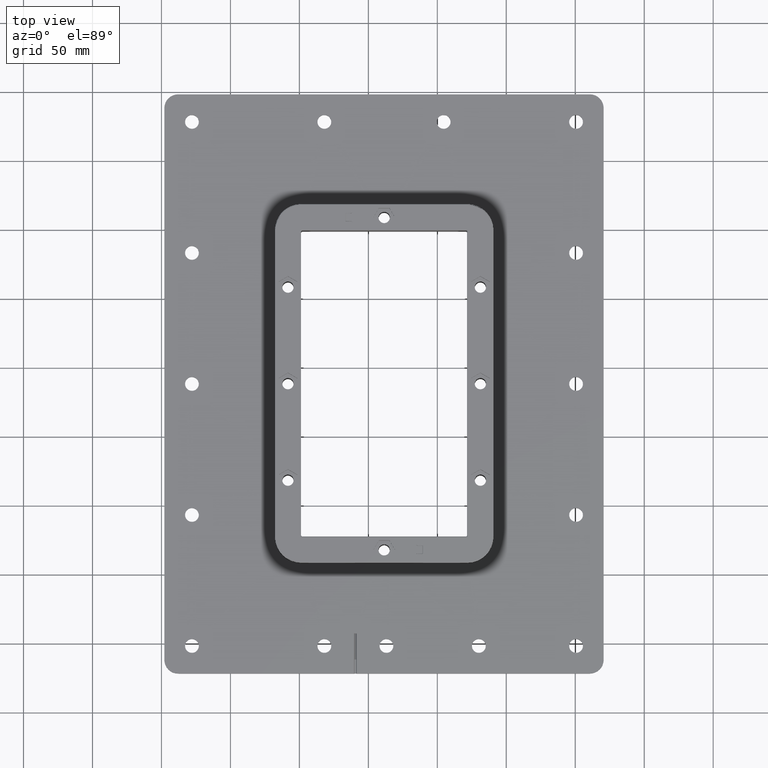
[diagram: clean part render]
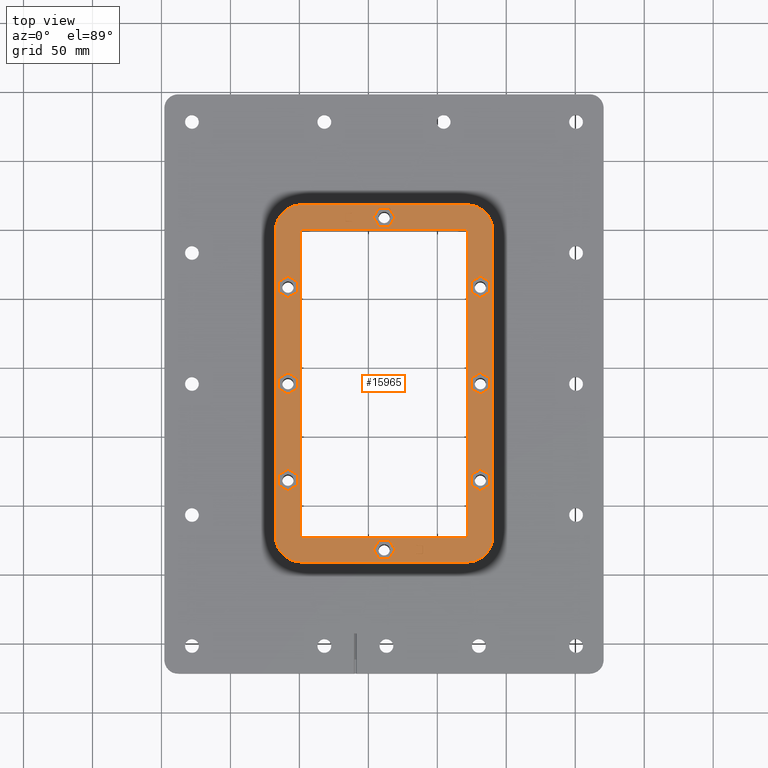
[diagram: same view with one face highlighted and labeled with its STEP entity id]
A machine part, top view. The second image highlights one B-rep face of the part: STEP entity #15965.
In plain terms, the highlighted planar face has unit normal (0, 0, -1).
Its self-contained STEP definition (entity closure, byte-faithful):
#2646=CARTESIAN_POINT('',(328.810808067202570,39.436636017474157,17.895023394076674));
#2647=VERTEX_POINT('',#2646);
#2655=CARTESIAN_POINT('',(208.310808067202570,39.436636017474299,17.895023394076706));
#2656=VERTEX_POINT('',#2655);
#2657=CARTESIAN_POINT('',(328.810808067202570,39.436636017474157,17.895023394076674));
#2658=DIRECTION('',(-1.0,0.0,0.0));
#2659=VECTOR('',#2658,120.500000000000000);
#2660=LINE('',#2657,#2659);
#2661=EDGE_CURVE('',#2647,#2656,#2660,.T.);
#2688=CARTESIAN_POINT('',(189.810808067202570,57.936636017474292,17.895023394076706));
#2689=VERTEX_POINT('',#2688);
#2697=CARTESIAN_POINT('',(189.810808067202570,279.936636017474310,17.895023394076706));
#2698=VERTEX_POINT('',#2697);
#2699=CARTESIAN_POINT('',(189.810808067202570,57.936636017474292,17.895023394076706));
#2700=DIRECTION('',(0.0,1.0,0.0));
#2701=VECTOR('',#2700,222.000000000000030);
#2702=LINE('',#2699,#2701);
#2703=EDGE_CURVE('',#2689,#2698,#2702,.T.);
#2730=CARTESIAN_POINT('',(208.310808067202570,298.436636017474310,17.895023394076706));
#2731=VERTEX_POINT('',#2730);
#2739=CARTESIAN_POINT('',(328.810808067202570,298.436636017474140,17.895023394076674));
#2740=VERTEX_POINT('',#2739);
#2741=CARTESIAN_POINT('',(208.310808067202570,298.436636017474310,17.895023394076706));
#2742=DIRECTION('',(1.0,0.0,0.0));
#2743=VECTOR('',#2742,120.500000000000000);
#2744=LINE('',#2741,#2743);
#2745=EDGE_CURVE('',#2731,#2740,#2744,.T.);
#2772=CARTESIAN_POINT('',(207.810808067202690,57.436636017474299,17.895023394076706));
#2773=VERTEX_POINT('',#2772);
#2789=CARTESIAN_POINT('',(329.310808067202520,57.436636017474157,17.895023394076674));
#2790=VERTEX_POINT('',#2789);
#2791=CARTESIAN_POINT('',(207.810808067202690,57.436636017474299,17.895023394076706));
#2792=DIRECTION('',(1.0,0.0,0.0));
#2793=VECTOR('',#2792,121.499999999999830);
#2794=LINE('',#2791,#2793);
#2795=EDGE_CURVE('',#2773,#2790,#2794,.T.);
#2830=CARTESIAN_POINT('',(329.310808067202520,280.436636017474200,17.895023394076674));
#2831=VERTEX_POINT('',#2830);
#2847=CARTESIAN_POINT('',(207.810808067202690,280.436636017474310,17.895023394076706));
#2848=VERTEX_POINT('',#2847);
#2849=CARTESIAN_POINT('',(329.310808067202520,280.436636017474200,17.895023394076674));
#2850=DIRECTION('',(-1.0,0.0,0.0));
#2851=VECTOR('',#2850,121.499999999999830);
#2852=LINE('',#2849,#2851);
#2853=EDGE_CURVE('',#2831,#2848,#2852,.T.);
#2903=CARTESIAN_POINT('',(207.810808067202690,280.436636017474310,17.895023394076706));
#2904=DIRECTION('',(0.0,-1.0,0.0));
#2905=VECTOR('',#2904,223.0);
#2906=LINE('',#2903,#2905);
#2907=EDGE_CURVE('',#2848,#2773,#2906,.T.);
#3858=CARTESIAN_POINT('',(296.296412139486050,51.190189408067596,17.895023394076706));
#3859=VERTEX_POINT('',#3858);
#3875=CARTESIAN_POINT('',(295.850357773918970,51.336636017474305,17.895023394076706));
#3876=VERTEX_POINT('',#3875);
#3883=CARTESIAN_POINT('',(295.850357773918970,50.836636017474312,17.895023394076706));
#3884=DIRECTION('',(0.0,0.0,-1.0));
#3885=DIRECTION('',(1.0,0.0,0.0));
#3886=AXIS2_PLACEMENT_3D('',#3883,#3884,#3885);
#3887=ELLIPSE('',#3886,0.630816133340643,0.500000000000000);
#3888=EDGE_CURVE('',#3876,#3859,#3887,.T.);
#3898=CARTESIAN_POINT('',(296.296412139486050,45.683082626881010,17.895023394076706));
#3899=VERTEX_POINT('',#3898);
#3908=CARTESIAN_POINT('',(295.850357773918970,45.536636017474301,17.895023394076706));
#3909=VERTEX_POINT('',#3908);
#3910=CARTESIAN_POINT('',(295.850357773918970,46.036636017474294,17.895023394076706));
#3911=DIRECTION('',(0.0,0.0,-1.0));
#3912=DIRECTION('',(1.0,0.0,0.0));
#3913=AXIS2_PLACEMENT_3D('',#3910,#3911,#3912);
#3914=ELLIPSE('',#3913,0.630816133340643,0.500000000000000);
#3915=EDGE_CURVE('',#3899,#3909,#3914,.T.);
#4110=CARTESIAN_POINT('',(240.699040768251170,286.583082626881040,17.895023394076706));
#4111=VERTEX_POINT('',#4110);
#4127=CARTESIAN_POINT('',(240.514279000477560,286.936636017474310,17.895023394076706));
#4128=VERTEX_POINT('',#4127);
#4135=CARTESIAN_POINT('',(241.145095133818190,286.936636017474310,17.895023394076706));
#4136=DIRECTION('',(0.0,0.0,-1.0));
#4137=DIRECTION('',(-1.0,0.0,0.0));
#4138=AXIS2_PLACEMENT_3D('',#4135,#4136,#4137);
#4139=ELLIPSE('',#4138,0.630816133340643,0.500000000000000);
#4140=EDGE_CURVE('',#4111,#4128,#4139,.T.);
#4150=CARTESIAN_POINT('',(240.699040768251140,292.290189408067590,17.895023394076706));
#4151=VERTEX_POINT('',#4150);
#4160=CARTESIAN_POINT('',(240.514279000477560,291.936636017474310,17.895023394076706));
#4161=VERTEX_POINT('',#4160);
#4162=CARTESIAN_POINT('',(241.145095133818190,291.936636017474310,17.895023394076706));
#4163=DIRECTION('',(0.0,0.0,-1.0));
#4164=DIRECTION('',(-1.0,0.0,0.0));
#4165=AXIS2_PLACEMENT_3D('',#4162,#4163,#4164);
#4166=ELLIPSE('',#4165,0.630816133340643,0.500000000000000);
#4167=EDGE_CURVE('',#4161,#4151,#4166,.T.);
#4192=CARTESIAN_POINT('',(291.930331602749790,51.629529236287738,17.895023394076706));
#4193=VERTEX_POINT('',#4192);
#4202=CARTESIAN_POINT('',(292.822440333883890,51.336636017474305,17.895023394076706));
#4203=VERTEX_POINT('',#4202);
#4204=CARTESIAN_POINT('',(292.822440333883890,52.336636017474305,17.895023394076706));
#4205=DIRECTION('',(0.0,0.0,-1.0));
#4206=DIRECTION('',(-1.0,0.0,0.0));
#4207=AXIS2_PLACEMENT_3D('',#4204,#4205,#4206);
#4208=ELLIPSE('',#4207,1.261632266681287,1.0);
#4209=EDGE_CURVE('',#4203,#4193,#4208,.T.);
#4236=CARTESIAN_POINT('',(291.930331602749790,45.243742798660861,17.895023394076706));
#4237=VERTEX_POINT('',#4236);
#4253=CARTESIAN_POINT('',(292.822440333883890,45.536636017474301,17.895023394076706));
#4254=VERTEX_POINT('',#4253);
#4261=CARTESIAN_POINT('',(292.822440333883890,44.536636017474294,17.895023394076706));
#4262=DIRECTION('',(0.0,0.0,-1.0));
#4263=DIRECTION('',(-1.0,0.0,0.0));
#4264=AXIS2_PLACEMENT_3D('',#4261,#4262,#4263);
#4265=ELLIPSE('',#4264,1.261632266681287,1.0);
#4266=EDGE_CURVE('',#4237,#4254,#4265,.T.);
#4446=CARTESIAN_POINT('',(245.191284531655470,286.143742798660870,17.895023394076706));
#4447=VERTEX_POINT('',#4446);
#4463=CARTESIAN_POINT('',(244.299175800521370,286.436636017474370,17.895023394076706));
#4464=VERTEX_POINT('',#4463);
#4471=CARTESIAN_POINT('',(244.299175800521370,285.436636017474310,17.895023394076706));
#4472=DIRECTION('',(0.0,0.0,-1.0));
#4473=DIRECTION('',(1.0,0.0,0.0));
#4474=AXIS2_PLACEMENT_3D('',#4471,#4472,#4473);
#4475=ELLIPSE('',#4474,1.261632266681287,1.0);
#4476=EDGE_CURVE('',#4464,#4447,#4475,.T.);
#4486=CARTESIAN_POINT('',(245.191284531655500,292.729529236287760,17.895023394076706));
#4487=VERTEX_POINT('',#4486);
#4496=CARTESIAN_POINT('',(244.299175800521370,292.436636017474310,17.895023394076706));
#4497=VERTEX_POINT('',#4496);
#4498=CARTESIAN_POINT('',(244.299175800521370,293.436636017474310,17.895023394076706));
#4499=DIRECTION('',(0.0,0.0,-1.0));
#4500=DIRECTION('',(1.0,0.0,0.0));
#4501=AXIS2_PLACEMENT_3D('',#4498,#4499,#4500);
#4502=ELLIPSE('',#4501,1.261632266681287,1.0);
#4503=EDGE_CURVE('',#4487,#4497,#4502,.T.);
#7086=CARTESIAN_POINT('',(347.310808067202570,279.936636017474200,17.895023394076674));
#7087=VERTEX_POINT('',#7086);
#7095=CARTESIAN_POINT('',(347.310808067202570,57.936636017474150,17.895023394076674));
#7096=VERTEX_POINT('',#7095);
#7097=CARTESIAN_POINT('',(347.310808067202570,279.936636017474200,17.895023394076674));
#7098=DIRECTION('',(0.0,-1.0,0.0));
#7099=VECTOR('',#7098,222.000000000000060);
#7100=LINE('',#7097,#7099);
#7101=EDGE_CURVE('',#7087,#7096,#7100,.T.);
#7143=CARTESIAN_POINT('',(329.310808067202520,57.436636017474157,17.895023394076674));
#7144=DIRECTION('',(0.0,1.0,0.0));
#7145=VECTOR('',#7144,223.000000000000060);
#7146=LINE('',#7143,#7145);
#7147=EDGE_CURVE('',#2790,#2831,#7146,.T.);
#7930=CARTESIAN_POINT('',(240.825203994919150,286.683082626880890,17.895023394076674));
#7931=VERTEX_POINT('',#7930);
#7947=CARTESIAN_POINT('',(241.271258360486200,286.536636017474170,17.895023394076674));
#7948=VERTEX_POINT('',#7947);
#7955=CARTESIAN_POINT('',(241.271258360486200,287.036636017474170,17.895023394076674));
#7956=DIRECTION('',(0.0,0.0,-1.0));
#7957=DIRECTION('',(-1.0,0.0,0.0));
#7958=AXIS2_PLACEMENT_3D('',#7955,#7956,#7957);
#7959=ELLIPSE('',#7958,0.630816133340643,0.500000000000000);
#7960=EDGE_CURVE('',#7948,#7931,#7959,.T.);
#7970=CARTESIAN_POINT('',(240.825203994919150,292.190189408067450,17.895023394076674));
#7971=VERTEX_POINT('',#7970);
#7980=CARTESIAN_POINT('',(241.271258360486200,292.336636017474180,17.895023394076674));
#7981=VERTEX_POINT('',#7980);
#7982=CARTESIAN_POINT('',(241.271258360486200,291.836636017474180,17.895023394076674));
#7983=DIRECTION('',(0.0,0.0,-1.0));
#7984=DIRECTION('',(-1.0,0.0,0.0));
#7985=AXIS2_PLACEMENT_3D('',#7982,#7983,#7984);
#7986=ELLIPSE('',#7985,0.630816133340643,0.500000000000000);
#7987=EDGE_CURVE('',#7971,#7981,#7986,.T.);
#8182=CARTESIAN_POINT('',(296.422575366153980,51.290189408067434,17.895023394076674));
#8183=VERTEX_POINT('',#8182);
#8199=CARTESIAN_POINT('',(296.607337133927560,50.936636017474157,17.895023394076674));
#8200=VERTEX_POINT('',#8199);
#8207=CARTESIAN_POINT('',(295.976521000586960,50.936636017474157,17.895023394076674));
#8208=DIRECTION('',(0.0,0.0,-1.0));
#8209=DIRECTION('',(1.0,0.0,0.0));
#8210=AXIS2_PLACEMENT_3D('',#8207,#8208,#8209);
#8211=ELLIPSE('',#8210,0.630816133340643,0.500000000000000);
#8212=EDGE_CURVE('',#8183,#8200,#8211,.T.);
#8222=CARTESIAN_POINT('',(296.422575366154040,45.583082626880874,17.895023394076674));
#8223=VERTEX_POINT('',#8222);
#8232=CARTESIAN_POINT('',(296.607337133927560,45.936636017474157,17.895023394076674));
#8233=VERTEX_POINT('',#8232);
#8234=CARTESIAN_POINT('',(295.976521000586960,45.936636017474157,17.895023394076674));
#8235=DIRECTION('',(0.0,0.0,-1.0));
#8236=DIRECTION('',(1.0,0.0,0.0));
#8237=AXIS2_PLACEMENT_3D('',#8234,#8235,#8236);
#8238=ELLIPSE('',#8237,0.630816133340643,0.500000000000000);
#8239=EDGE_CURVE('',#8233,#8223,#8238,.T.);
#8264=CARTESIAN_POINT('',(245.191284531655300,286.243742798660720,17.895023394076674));
#8265=VERTEX_POINT('',#8264);
#8274=CARTESIAN_POINT('',(244.299175800521230,286.536636017474170,17.895023394076674));
#8275=VERTEX_POINT('',#8274);
#8276=CARTESIAN_POINT('',(244.299175800521230,285.536636017474170,17.895023394076674));
#8277=DIRECTION('',(0.0,0.0,-1.0));
#8278=DIRECTION('',(1.0,0.0,0.0));
#8279=AXIS2_PLACEMENT_3D('',#8276,#8277,#8278);
#8280=ELLIPSE('',#8279,1.261632266681287,1.0);
#8281=EDGE_CURVE('',#8275,#8265,#8280,.T.);
#8308=CARTESIAN_POINT('',(245.191284531655300,292.629529236287620,17.895023394076674));
#8309=VERTEX_POINT('',#8308);
#8325=CARTESIAN_POINT('',(244.299175800521230,292.336636017474180,17.895023394076674));
#8326=VERTEX_POINT('',#8325);
#8333=CARTESIAN_POINT('',(244.299175800521230,293.336636017474180,17.895023394076674));
#8334=DIRECTION('',(0.0,0.0,-1.0));
#8335=DIRECTION('',(1.0,0.0,0.0));
#8336=AXIS2_PLACEMENT_3D('',#8333,#8334,#8335);
#8337=ELLIPSE('',#8336,1.261632266681287,1.0);
#8338=EDGE_CURVE('',#8309,#8326,#8337,.T.);
#8518=CARTESIAN_POINT('',(291.930331602749730,51.729529236287625,17.895023394076674));
#8519=VERTEX_POINT('',#8518);
#8535=CARTESIAN_POINT('',(292.822440333883830,51.436636017474164,17.895023394076674));
#8536=VERTEX_POINT('',#8535);
#8543=CARTESIAN_POINT('',(292.822440333883830,52.436636017474157,17.895023394076674));
#8544=DIRECTION('',(0.0,0.0,-1.0));
#8545=DIRECTION('',(-1.0,0.0,0.0));
#8546=AXIS2_PLACEMENT_3D('',#8543,#8544,#8545);
#8547=ELLIPSE('',#8546,1.261632266681287,1.0);
#8548=EDGE_CURVE('',#8536,#8519,#8547,.T.);
#8558=CARTESIAN_POINT('',(291.930331602749730,45.143742798660696,17.895023394076674));
#8559=VERTEX_POINT('',#8558);
#8568=CARTESIAN_POINT('',(292.822440333883830,45.436636017474150,17.895023394076674));
#8569=VERTEX_POINT('',#8568);
#8570=CARTESIAN_POINT('',(292.822440333883830,44.436636017474164,17.895023394076674));
#8571=DIRECTION('',(0.0,0.0,-1.0));
#8572=DIRECTION('',(-1.0,0.0,0.0));
#8573=AXIS2_PLACEMENT_3D('',#8570,#8571,#8572);
#8574=ELLIPSE('',#8573,1.261632266681287,1.0);
#8575=EDGE_CURVE('',#8559,#8569,#8574,.T.);
#8602=CARTESIAN_POINT('',(245.560808067202600,293.436636017474310,17.895023394076706));
#8603=VERTEX_POINT('',#8602);
#8618=CARTESIAN_POINT('',(245.560808067202490,293.336636017474180,17.895023394076674));
#8619=VERTEX_POINT('',#8618);
#8626=CARTESIAN_POINT('',(245.560808067202490,293.336636017474180,17.895023394076674));
#8627=DIRECTION('',(1.136868E-012,1.0,3.197442E-013));
#8628=VECTOR('',#8627,0.100000000000136);
#8629=LINE('',#8626,#8628);
#8630=EDGE_CURVE('',#8619,#8603,#8629,.T.);
#8852=CARTESIAN_POINT('',(291.560808067202520,44.436636017474164,17.895023394076674));
#8853=VERTEX_POINT('',#8852);
#8860=CARTESIAN_POINT('',(292.822440333883830,44.436636017474164,17.895023394076674));
#8861=DIRECTION('',(0.0,0.0,-1.0));
#8862=DIRECTION('',(-1.0,0.0,0.0));
#8863=AXIS2_PLACEMENT_3D('',#8860,#8861,#8862);
#8864=ELLIPSE('',#8863,1.261632266681287,1.0);
#8865=EDGE_CURVE('',#8853,#8559,#8864,.T.);
#8876=CARTESIAN_POINT('',(295.976521000586960,45.436636017474150,17.895023394076674));
#8877=VERTEX_POINT('',#8876);
#8878=CARTESIAN_POINT('',(295.976521000586960,45.436636017474150,17.895023394076674));
#8879=DIRECTION('',(-1.0,0.0,0.0));
#8880=VECTOR('',#8879,3.154080666703123);
#8881=LINE('',#8878,#8880);
#8882=EDGE_CURVE('',#8877,#8569,#8881,.T.);
#8907=CARTESIAN_POINT('',(291.560808067202520,52.436636017474157,17.895023394076674));
#8908=VERTEX_POINT('',#8907);
#8909=CARTESIAN_POINT('',(292.822440333883830,52.436636017474157,17.895023394076674));
#8910=DIRECTION('',(0.0,0.0,-1.0));
#8911=DIRECTION('',(-1.0,0.0,0.0));
#8912=AXIS2_PLACEMENT_3D('',#8909,#8910,#8911);
#8913=ELLIPSE('',#8912,1.261632266681287,1.0);
#8914=EDGE_CURVE('',#8519,#8908,#8913,.T.);
#8948=CARTESIAN_POINT('',(295.976521000586960,51.436636017474164,17.895023394076674));
#8949=VERTEX_POINT('',#8948);
#8956=CARTESIAN_POINT('',(292.822440333883830,51.436636017474164,17.895023394076674));
#8957=DIRECTION('',(1.0,0.0,0.0));
#8958=VECTOR('',#8957,3.154080666703123);
#8959=LINE('',#8956,#8958);
#8960=EDGE_CURVE('',#8536,#8949,#8959,.T.);
#9146=CARTESIAN_POINT('',(244.299175800521230,293.336636017474180,17.895023394076674));
#9147=DIRECTION('',(0.0,0.0,-1.0));
#9148=DIRECTION('',(1.0,0.0,0.0));
#9149=AXIS2_PLACEMENT_3D('',#9146,#9147,#9148);
#9150=ELLIPSE('',#9149,1.261632266681287,1.0);
#9151=EDGE_CURVE('',#8619,#8309,#9150,.T.);
#9177=CARTESIAN_POINT('',(244.299175800521230,292.336636017474180,17.895023394076674));
#9178=DIRECTION('',(-1.0,0.0,0.0));
#9179=VECTOR('',#9178,3.027917440035026);
#9180=LINE('',#9177,#9179);
#9181=EDGE_CURVE('',#8326,#7981,#9180,.T.);
#9201=CARTESIAN_POINT('',(245.560808067202490,285.536636017474170,17.895023394076674));
#9202=VERTEX_POINT('',#9201);
#9209=CARTESIAN_POINT('',(244.299175800521230,285.536636017474170,17.895023394076674));
#9210=DIRECTION('',(0.0,0.0,-1.0));
#9211=DIRECTION('',(1.0,0.0,0.0));
#9212=AXIS2_PLACEMENT_3D('',#9209,#9210,#9211);
#9213=ELLIPSE('',#9212,1.261632266681287,1.0);
#9214=EDGE_CURVE('',#8265,#9202,#9213,.T.);
#9225=CARTESIAN_POINT('',(241.271258360486200,286.536636017474170,17.895023394076674));
#9226=DIRECTION('',(1.0,0.0,0.0));
#9227=VECTOR('',#9226,3.027917440035026);
#9228=LINE('',#9225,#9227);
#9229=EDGE_CURVE('',#7948,#8275,#9228,.T.);
#9255=CARTESIAN_POINT('',(295.976521000586960,45.936636017474157,17.895023394076674));
#9256=DIRECTION('',(0.0,0.0,-1.0));
#9257=DIRECTION('',(1.0,0.0,0.0));
#9258=AXIS2_PLACEMENT_3D('',#9255,#9256,#9257);
#9259=ELLIPSE('',#9258,0.630816133340643,0.500000000000000);
#9260=EDGE_CURVE('',#8223,#8877,#9259,.T.);
#9271=CARTESIAN_POINT('',(296.607337133927560,50.936636017474157,17.895023394076674));
#9272=DIRECTION('',(0.0,-1.0,0.0));
#9273=VECTOR('',#9272,5.0);
#9274=LINE('',#9271,#9273);
#9275=EDGE_CURVE('',#8200,#8233,#9274,.T.);
#9293=CARTESIAN_POINT('',(295.976521000586960,50.936636017474157,17.895023394076674));
#9294=DIRECTION('',(0.0,0.0,-1.0));
#9295=DIRECTION('',(1.0,0.0,0.0));
#9296=AXIS2_PLACEMENT_3D('',#9293,#9294,#9295);
#9297=ELLIPSE('',#9296,0.630816133340643,0.500000000000000);
#9298=EDGE_CURVE('',#8949,#8183,#9297,.T.);
#9469=CARTESIAN_POINT('',(240.640442227145540,291.836636017474180,17.895023394076674));
#9470=VERTEX_POINT('',#9469);
#9477=CARTESIAN_POINT('',(241.271258360486200,291.836636017474180,17.895023394076674));
#9478=DIRECTION('',(0.0,0.0,-1.0));
#9479=DIRECTION('',(-1.0,0.0,0.0));
#9480=AXIS2_PLACEMENT_3D('',#9477,#9478,#9479);
#9481=ELLIPSE('',#9480,0.630816133340643,0.500000000000000);
#9482=EDGE_CURVE('',#9470,#7971,#9481,.T.);
#9493=CARTESIAN_POINT('',(240.640442227145540,287.036636017474170,17.895023394076674));
#9494=VERTEX_POINT('',#9493);
#9495=CARTESIAN_POINT('',(241.271258360486200,287.036636017474170,17.895023394076674));
#9496=DIRECTION('',(0.0,0.0,-1.0));
#9497=DIRECTION('',(-1.0,0.0,0.0));
#9498=AXIS2_PLACEMENT_3D('',#9495,#9496,#9497);
#9499=ELLIPSE('',#9498,0.630816133340643,0.500000000000000);
#9500=EDGE_CURVE('',#7931,#9494,#9499,.T.);
#9586=CARTESIAN_POINT('',(240.640442227145540,287.036636017474170,17.895023394076674));
#9587=DIRECTION('',(0.0,1.0,0.0));
#9588=VECTOR('',#9587,4.800000000000011);
#9589=LINE('',#9586,#9588);
#9590=EDGE_CURVE('',#9494,#9470,#9589,.T.);
#9600=CARTESIAN_POINT('',(245.560808067202600,285.436636017474310,17.895023394076706));
#9601=VERTEX_POINT('',#9600);
#9610=CARTESIAN_POINT('',(245.560808067202600,285.436636017474310,17.895023394076706));
#9611=DIRECTION('',(-1.136868E-012,1.0,-3.197442E-013));
#9612=VECTOR('',#9611,0.099999999999852);
#9613=LINE('',#9610,#9612);
#9614=EDGE_CURVE('',#9601,#9202,#9613,.T.);
#11350=CARTESIAN_POINT('',(328.810808067202570,57.936636017474150,17.895023394076674));
#11351=DIRECTION('',(7.498304E-033,-7.498304E-033,-1.000000000000000));
#11352=DIRECTION('',(0.707106781186548,-0.707106781186548,1.060420E-032));
#11353=AXIS2_PLACEMENT_3D('',#11350,#11351,#11352);
#11354=CIRCLE('',#11353,18.500000000000000);
#11355=EDGE_CURVE('',#7096,#2647,#11354,.T.);
#11407=CARTESIAN_POINT('',(328.810808067202570,279.936636017474200,17.895023394076674));
#11408=DIRECTION('',(-7.498304E-033,-7.498304E-033,-1.000000000000000));
#11409=DIRECTION('',(0.707106781186548,0.707106781186548,-1.060420E-032));
#11410=AXIS2_PLACEMENT_3D('',#11407,#11408,#11409);
#11411=CIRCLE('',#11410,18.500000000000000);
#11412=EDGE_CURVE('',#2740,#7087,#11411,.T.);
#14582=CARTESIAN_POINT('',(345.010808067202620,95.068389213903671,17.895023394076674));
#14583=VERTEX_POINT('',#14582);
#14590=CARTESIAN_POINT('',(345.010808067202620,102.804882821044600,17.895023394076674));
#14591=VERTEX_POINT('',#14590);
#14592=CARTESIAN_POINT('',(345.010808067202620,102.804882821044600,17.895023394076674));
#14593=DIRECTION('',(0.0,-1.0,0.0));
#14594=VECTOR('',#14593,7.736493607140929);
#14595=LINE('',#14592,#14594);
#14596=EDGE_CURVE('',#14591,#14583,#14595,.T.);
#14621=CARTESIAN_POINT('',(338.310808067202630,106.673129624615210,17.895023394076674));
#14622=VERTEX_POINT('',#14621);
#14623=CARTESIAN_POINT('',(338.310808067202630,106.673129624615210,17.895023394076674));
#14624=DIRECTION('',(0.866025403784432,-0.500000000000012,0.0));
#14625=VECTOR('',#14624,7.736493607141036);
#14626=LINE('',#14623,#14625);
#14627=EDGE_CURVE('',#14622,#14591,#14626,.T.);
#14652=CARTESIAN_POINT('',(331.610808067202580,102.804882821044700,17.895023394076674));
#14653=VERTEX_POINT('',#14652);
#14654=CARTESIAN_POINT('',(331.610808067202580,102.804882821044700,17.895023394076674));
#14655=DIRECTION('',(0.866025403784439,0.500000000000000,0.0));
#14656=VECTOR('',#14655,7.736493607141036);
#14657=LINE('',#14654,#14656);
#14658=EDGE_CURVE('',#14653,#14622,#14657,.T.);
#14683=CARTESIAN_POINT('',(331.610808067202580,95.068389213903700,17.895023394076674));
#14684=VERTEX_POINT('',#14683);
#14685=CARTESIAN_POINT('',(331.610808067202580,95.068389213903700,17.895023394076674));
#14686=DIRECTION('',(0.0,1.0,0.0));
#14687=VECTOR('',#14686,7.736493607141000);
#14688=LINE('',#14685,#14687);
#14689=EDGE_CURVE('',#14684,#14653,#14688,.T.);
#14714=CARTESIAN_POINT('',(338.310808067202570,91.200142410333243,17.895023394076674));
#14715=VERTEX_POINT('',#14714);
#14716=CARTESIAN_POINT('',(338.310808067202570,91.200142410333243,17.895023394076674));
#14717=DIRECTION('',(-0.866025403784440,0.499999999999997,0.0));
#14718=VECTOR('',#14717,7.736493607140957);
#14719=LINE('',#14716,#14718);
#14720=EDGE_CURVE('',#14715,#14684,#14719,.T.);
#14743=CARTESIAN_POINT('',(345.010808067202620,95.068389213903671,17.895023394076674));
#14744=DIRECTION('',(-0.866025403784444,-0.499999999999991,0.0));
#14745=VECTOR('',#14744,7.736493607140993);
#14746=LINE('',#14743,#14745);
#14747=EDGE_CURVE('',#14583,#14715,#14746,.T.);
#14786=CARTESIAN_POINT('',(345.010808067202620,165.068389213903660,17.895023394076674));
#14787=VERTEX_POINT('',#14786);
#14794=CARTESIAN_POINT('',(345.010808067202620,172.804882821044600,17.895023394076674));
#14795=VERTEX_POINT('',#14794);
#14796=CARTESIAN_POINT('',(345.010808067202620,172.804882821044600,17.895023394076674));
#14797=DIRECTION('',(0.0,-1.0,0.0));
#14798=VECTOR('',#14797,7.736493607140943);
#14799=LINE('',#14796,#14798);
#14800=EDGE_CURVE('',#14795,#14787,#14799,.T.);
#14825=CARTESIAN_POINT('',(338.310808067202630,176.673129624615200,17.895023394076674));
#14826=VERTEX_POINT('',#14825);
#14827=CARTESIAN_POINT('',(338.310808067202630,176.673129624615200,17.895023394076674));
#14828=DIRECTION('',(0.866025403784432,-0.500000000000011,0.0));
#14829=VECTOR('',#14828,7.736493607141028);
#14830=LINE('',#14827,#14829);
#14831=EDGE_CURVE('',#14826,#14795,#14830,.T.);
#14856=CARTESIAN_POINT('',(331.610808067202580,172.804882821044690,17.895023394076674));
#14857=VERTEX_POINT('',#14856);
#14858=CARTESIAN_POINT('',(331.610808067202580,172.804882821044690,17.895023394076674));
#14859=DIRECTION('',(0.866025403784439,0.500000000000000,0.0));
#14860=VECTOR('',#14859,7.736493607141036);
#14861=LINE('',#14858,#14860);
#14862=EDGE_CURVE('',#14857,#14826,#14861,.T.);
#14887=CARTESIAN_POINT('',(331.610808067202580,165.068389213903710,17.895023394076674));
#14888=VERTEX_POINT('',#14887);
#14889=CARTESIAN_POINT('',(331.610808067202580,165.068389213903710,17.895023394076674));
#14890=DIRECTION('',(0.0,1.0,0.0));
#14891=VECTOR('',#14890,7.736493607140972);
#14892=LINE('',#14889,#14891);
#14893=EDGE_CURVE('',#14888,#14857,#14892,.T.);
#14918=CARTESIAN_POINT('',(338.310808067202570,161.200142410333230,17.895023394076674));
#14919=VERTEX_POINT('',#14918);
#14920=CARTESIAN_POINT('',(338.310808067202570,161.200142410333230,17.895023394076674));
#14921=DIRECTION('',(-0.866025403784439,0.500000000000000,0.0));
#14922=VECTOR('',#14921,7.736493607140972);
#14923=LINE('',#14920,#14922);
#14924=EDGE_CURVE('',#14919,#14888,#14923,.T.);
#14947=CARTESIAN_POINT('',(345.010808067202620,165.068389213903660,17.895023394076674));
#14948=DIRECTION('',(-0.866025403784444,-0.499999999999991,0.0));
#14949=VECTOR('',#14948,7.736493607140993);
#14950=LINE('',#14947,#14949);
#14951=EDGE_CURVE('',#14787,#14919,#14950,.T.);
#14990=CARTESIAN_POINT('',(345.010808067202620,235.068389213903690,17.895023394076674));
#14991=VERTEX_POINT('',#14990);
#14998=CARTESIAN_POINT('',(345.010808067202620,242.804882821044690,17.895023394076674));
#14999=VERTEX_POINT('',#14998);
#15000=CARTESIAN_POINT('',(345.010808067202620,242.804882821044690,17.895023394076674));
#15001=DIRECTION('',(0.0,-1.0,0.0));
#15002=VECTOR('',#15001,7.736493607141000);
#15003=LINE('',#15000,#15002);
#15004=EDGE_CURVE('',#14999,#14991,#15003,.T.);
#15029=CARTESIAN_POINT('',(338.310808067202630,246.673129624615200,17.895023394076674));
#15030=VERTEX_POINT('',#15029);
#15031=CARTESIAN_POINT('',(338.310808067202630,246.673129624615200,17.895023394076674));
#15032=DIRECTION('',(0.866025403784437,-0.500000000000003,0.0));
#15033=VECTOR('',#15032,7.736493607140986);
#15034=LINE('',#15031,#15033);
#15035=EDGE_CURVE('',#15030,#14999,#15034,.T.);
#15060=CARTESIAN_POINT('',(331.610808067202580,242.804882821044710,17.895023394076674));
#15061=VERTEX_POINT('',#15060);
#15062=CARTESIAN_POINT('',(331.610808067202580,242.804882821044710,17.895023394076674));
#15063=DIRECTION('',(0.866025403784440,0.499999999999997,0.0));
#15064=VECTOR('',#15063,7.736493607141021);
#15065=LINE('',#15062,#15064);
#15066=EDGE_CURVE('',#15061,#15030,#15065,.T.);
#15091=CARTESIAN_POINT('',(331.610808067202580,235.068389213903710,17.895023394076674));
#15092=VERTEX_POINT('',#15091);
#15093=CARTESIAN_POINT('',(331.610808067202580,235.068389213903710,17.895023394076674));
#15094=DIRECTION('',(0.0,1.0,0.0));
#15095=VECTOR('',#15094,7.736493607141000);
#15096=LINE('',#15093,#15095);
#15097=EDGE_CURVE('',#15092,#15061,#15096,.T.);
#15122=CARTESIAN_POINT('',(338.310808067202570,231.200142410333230,17.895023394076674));
#15123=VERTEX_POINT('',#15122);
#15124=CARTESIAN_POINT('',(338.310808067202570,231.200142410333230,17.895023394076674));
#15125=DIRECTION('',(-0.866025403784439,0.500000000000000,0.0));
#15126=VECTOR('',#15125,7.736493607140972);
#15127=LINE('',#15124,#15126);
#15128=EDGE_CURVE('',#15123,#15092,#15127,.T.);
#15151=CARTESIAN_POINT('',(345.010808067202620,235.068389213903690,17.895023394076674));
#15152=DIRECTION('',(-0.866025403784442,-0.499999999999994,0.0));
#15153=VECTOR('',#15152,7.736493607141007);
#15154=LINE('',#15151,#15153);
#15155=EDGE_CURVE('',#14991,#15123,#15154,.T.);
#15194=CARTESIAN_POINT('',(264.692561263632230,282.736636017474210,17.895023394076674));
#15195=VERTEX_POINT('',#15194);
#15202=CARTESIAN_POINT('',(272.429054870773090,282.736636017474210,17.895023394076674));
#15203=VERTEX_POINT('',#15202);
#15204=CARTESIAN_POINT('',(272.429054870773090,282.736636017474210,17.895023394076674));
#15205=DIRECTION('',(-1.0,0.0,0.0));
#15206=VECTOR('',#15205,7.736493607140858);
#15207=LINE('',#15204,#15206);
#15208=EDGE_CURVE('',#15203,#15195,#15207,.T.);
#15233=CARTESIAN_POINT('',(276.297301674343600,289.436636017474260,17.895023394076674));
#15234=VERTEX_POINT('',#15233);
#15235=CARTESIAN_POINT('',(276.297301674343600,289.436636017474260,17.895023394076674));
#15236=DIRECTION('',(-0.500000000000000,-0.866025403784439,0.0));
#15237=VECTOR('',#15236,7.736493607141036);
#15238=LINE('',#15235,#15237);
#15239=EDGE_CURVE('',#15234,#15203,#15238,.T.);
#15264=CARTESIAN_POINT('',(272.429054870773090,296.136636017474130,17.895023394076674));
#15265=VERTEX_POINT('',#15264);
#15266=CARTESIAN_POINT('',(272.429054870773090,296.136636017474130,17.895023394076674));
#15267=DIRECTION('',(0.500000000000009,-0.866025403784433,0.0));
#15268=VECTOR('',#15267,7.736493607140888);
#15269=LINE('',#15266,#15268);
#15270=EDGE_CURVE('',#15265,#15234,#15269,.T.);
#15295=CARTESIAN_POINT('',(264.692561263632230,296.136636017474130,17.895023394076674));
#15296=VERTEX_POINT('',#15295);
#15297=CARTESIAN_POINT('',(264.692561263632230,296.136636017474130,17.895023394076674));
#15298=DIRECTION('',(1.0,0.0,0.0));
#15299=VECTOR('',#15298,7.736493607140858);
#15300=LINE('',#15297,#15299);
#15301=EDGE_CURVE('',#15296,#15265,#15300,.T.);
#15326=CARTESIAN_POINT('',(260.824314460061710,289.436636017474260,17.895023394076674));
#15327=VERTEX_POINT('',#15326);
#15328=CARTESIAN_POINT('',(260.824314460061710,289.436636017474260,17.895023394076674));
#15329=DIRECTION('',(0.500000000000009,0.866025403784433,0.0));
#15330=VECTOR('',#15329,7.736493607140888);
#15331=LINE('',#15328,#15330);
#15332=EDGE_CURVE('',#15327,#15296,#15331,.T.);
#15355=CARTESIAN_POINT('',(264.692561263632230,282.736636017474210,17.895023394076674));
#15356=DIRECTION('',(-0.500000000000000,0.866025403784439,0.0));
#15357=VECTOR('',#15356,7.736493607141036);
#15358=LINE('',#15355,#15357);
#15359=EDGE_CURVE('',#15195,#15327,#15358,.T.);
#15489=CARTESIAN_POINT('',(291.560808067202630,44.536636017474294,17.895023394076706));
#15490=VERTEX_POINT('',#15489);
#15497=CARTESIAN_POINT('',(291.560808067202630,44.536636017474294,17.895023394076706));
#15498=DIRECTION('',(-1.136868E-012,-1.0,-3.197442E-013));
#15499=VECTOR('',#15498,0.100000000000129);
#15500=LINE('',#15497,#15499);
#15501=EDGE_CURVE('',#15490,#8853,#15500,.T.);
#15534=CARTESIAN_POINT('',(244.299175800521370,293.436636017474310,17.895023394076706));
#15535=DIRECTION('',(0.0,0.0,-1.0));
#15536=DIRECTION('',(1.0,0.0,0.0));
#15537=AXIS2_PLACEMENT_3D('',#15534,#15535,#15536);
#15538=ELLIPSE('',#15537,1.261632266681287,1.0);
#15539=EDGE_CURVE('',#8603,#4487,#15538,.T.);
#15550=CARTESIAN_POINT('',(241.145095133818190,292.436636017474310,17.895023394076706));
#15551=VERTEX_POINT('',#15550);
#15552=CARTESIAN_POINT('',(241.145095133818190,292.436636017474310,17.895023394076706));
#15553=DIRECTION('',(1.0,0.0,0.0));
#15554=VECTOR('',#15553,3.154080666703180);
#15555=LINE('',#15552,#15554);
#15556=EDGE_CURVE('',#15551,#4497,#15555,.T.);
#15568=CARTESIAN_POINT('',(189.310808067202600,38.936636017474306,17.895023394076706));
#15569=DIRECTION('',(0.0,0.0,-1.0));
#15570=DIRECTION('',(-1.0,0.0,0.0));
#15571=AXIS2_PLACEMENT_3D('',#15568,#15569,#15570);
#15572=PLANE('',#15571);
#15573=ORIENTED_EDGE('',*,*,#2745,.F.);
#15574=CARTESIAN_POINT('',(208.310808067202570,279.936636017474310,17.895023394076706));
#15575=DIRECTION('',(0.0,0.0,-1.000000000000000));
#15576=DIRECTION('',(-0.707106781186548,0.707106781186548,0.0));
#15577=AXIS2_PLACEMENT_3D('',#15574,#15575,#15576);
#15578=CIRCLE('',#15577,18.500000000000000);
#15579=EDGE_CURVE('',#2698,#2731,#15578,.T.);
#15580=ORIENTED_EDGE('',*,*,#15579,.F.);
#15581=ORIENTED_EDGE('',*,*,#2703,.F.);
#15582=CARTESIAN_POINT('',(208.310808067202570,57.936636017474292,17.895023394076706));
#15583=DIRECTION('',(0.0,0.0,-1.000000000000000));
#15584=DIRECTION('',(-0.707106781186548,-0.707106781186548,0.0));
#15585=AXIS2_PLACEMENT_3D('',#15582,#15583,#15584);
#15586=CIRCLE('',#15585,18.500000000000000);
#15587=EDGE_CURVE('',#2656,#2689,#15586,.T.);
#15588=ORIENTED_EDGE('',*,*,#15587,.F.);
#15589=ORIENTED_EDGE('',*,*,#2661,.F.);
#15590=ORIENTED_EDGE('',*,*,#11355,.F.);
#15591=ORIENTED_EDGE('',*,*,#7101,.F.);
#15592=ORIENTED_EDGE('',*,*,#11412,.F.);
#15593=EDGE_LOOP('',(#15573,#15580,#15581,#15588,#15589,#15590,#15591,#15592));
#15594=FACE_OUTER_BOUND('',#15593,.T.);
#15595=ORIENTED_EDGE('',*,*,#4476,.F.);
#15596=CARTESIAN_POINT('',(241.145095133818190,286.436636017474370,17.895023394076706));
#15597=VERTEX_POINT('',#15596);
#15598=CARTESIAN_POINT('',(244.299175800521370,286.436636017474370,17.895023394076706));
#15599=DIRECTION('',(-1.0,0.0,0.0));
#15600=VECTOR('',#15599,3.154080666703180);
#15601=LINE('',#15598,#15600);
#15602=EDGE_CURVE('',#4464,#15597,#15601,.T.);
#15603=ORIENTED_EDGE('',*,*,#15602,.T.);
#15604=CARTESIAN_POINT('',(241.145095133818190,286.936636017474310,17.895023394076706));
#15605=DIRECTION('',(0.0,0.0,-1.0));
#15606=DIRECTION('',(-1.0,0.0,0.0));
#15607=AXIS2_PLACEMENT_3D('',#15604,#15605,#15606);
#15608=ELLIPSE('',#15607,0.630816133340643,0.500000000000000);
#15609=EDGE_CURVE('',#15597,#4111,#15608,.T.);
#15610=ORIENTED_EDGE('',*,*,#15609,.T.);
#15611=ORIENTED_EDGE('',*,*,#4140,.T.);
#15612=CARTESIAN_POINT('',(240.514279000477560,286.936636017474310,17.895023394076706));
#15613=DIRECTION('',(0.0,1.0,0.0));
#15614=VECTOR('',#15613,5.0);
#15615=LINE('',#15612,#15614);
#15616=EDGE_CURVE('',#4128,#4161,#15615,.T.);
#15617=ORIENTED_EDGE('',*,*,#15616,.T.);
#15618=ORIENTED_EDGE('',*,*,#4167,.T.);
#15619=CARTESIAN_POINT('',(241.145095133818190,291.936636017474310,17.895023394076706));
#15620=DIRECTION('',(0.0,0.0,-1.0));
#15621=DIRECTION('',(-1.0,0.0,0.0));
#15622=AXIS2_PLACEMENT_3D('',#15619,#15620,#15621);
#15623=ELLIPSE('',#15622,0.630816133340643,0.500000000000000);
#15624=EDGE_CURVE('',#4151,#15551,#15623,.T.);
#15625=ORIENTED_EDGE('',*,*,#15624,.T.);
#15626=ORIENTED_EDGE('',*,*,#15556,.T.);
#15627=ORIENTED_EDGE('',*,*,#4503,.F.);
#15628=ORIENTED_EDGE('',*,*,#15539,.F.);
#15629=ORIENTED_EDGE('',*,*,#8630,.F.);
#15630=ORIENTED_EDGE('',*,*,#9151,.T.);
#15631=ORIENTED_EDGE('',*,*,#8338,.T.);
#15632=ORIENTED_EDGE('',*,*,#9181,.T.);
#15633=ORIENTED_EDGE('',*,*,#7987,.F.);
#15634=ORIENTED_EDGE('',*,*,#9482,.F.);
#15635=ORIENTED_EDGE('',*,*,#9590,.F.);
#15636=ORIENTED_EDGE('',*,*,#9500,.F.);
#15637=ORIENTED_EDGE('',*,*,#7960,.F.);
#15638=ORIENTED_EDGE('',*,*,#9229,.T.);
#15639=ORIENTED_EDGE('',*,*,#8281,.T.);
#15640=ORIENTED_EDGE('',*,*,#9214,.T.);
#15641=ORIENTED_EDGE('',*,*,#9614,.F.);
#15642=CARTESIAN_POINT('',(244.299175800521370,285.436636017474310,17.895023394076706));
#15643=DIRECTION('',(0.0,0.0,-1.0));
#15644=DIRECTION('',(1.0,0.0,0.0));
#15645=AXIS2_PLACEMENT_3D('',#15642,#15643,#15644);
#15646=ELLIPSE('',#15645,1.261632266681287,1.0);
#15647=EDGE_CURVE('',#4447,#9601,#15646,.T.);
#15648=ORIENTED_EDGE('',*,*,#15647,.F.);
#15649=EDGE_LOOP('',(#15595,#15603,#15610,#15611,#15617,#15618,#15625,#15626,#15627,#15628,#15629,#15630,#15631,#15632,#15633,#15634,#15635,#15636,#15637,#15638,#15639,#15640,#15641,#15648));
#15650=FACE_BOUND('',#15649,.T.);
#15651=ORIENTED_EDGE('',*,*,#15501,.F.);
#15652=CARTESIAN_POINT('',(292.822440333883890,44.536636017474294,17.895023394076706));
#15653=DIRECTION('',(0.0,0.0,-1.0));
#15654=DIRECTION('',(-1.0,0.0,0.0));
#15655=AXIS2_PLACEMENT_3D('',#15652,#15653,#15654);
#15656=ELLIPSE('',#15655,1.261632266681287,1.0);
#15657=EDGE_CURVE('',#15490,#4237,#15656,.T.);
#15658=ORIENTED_EDGE('',*,*,#15657,.T.);
#15659=ORIENTED_EDGE('',*,*,#4266,.T.);
#15660=CARTESIAN_POINT('',(292.822440333883890,45.536636017474301,17.895023394076706));
#15661=DIRECTION('',(1.0,0.0,0.0));
#15662=VECTOR('',#15661,3.027917440035083);
#15663=LINE('',#15660,#15662);
#15664=EDGE_CURVE('',#4254,#3909,#15663,.T.);
#15665=ORIENTED_EDGE('',*,*,#15664,.T.);
#15666=ORIENTED_EDGE('',*,*,#3915,.F.);
#15667=CARTESIAN_POINT('',(296.481173907259630,46.036636017474294,17.895023394076706));
#15668=VERTEX_POINT('',#15667);
#15669=CARTESIAN_POINT('',(295.850357773918970,46.036636017474294,17.895023394076706));
#15670=DIRECTION('',(0.0,0.0,-1.0));
#15671=DIRECTION('',(1.0,0.0,0.0));
#15672=AXIS2_PLACEMENT_3D('',#15669,#15670,#15671);
#15673=ELLIPSE('',#15672,0.630816133340643,0.500000000000000);
#15674=EDGE_CURVE('',#15668,#3899,#15673,.T.);
#15675=ORIENTED_EDGE('',*,*,#15674,.F.);
#15676=CARTESIAN_POINT('',(296.481173907259630,50.836636017474312,17.895023394076706));
#15677=VERTEX_POINT('',#15676);
#15678=CARTESIAN_POINT('',(296.481173907259630,50.836636017474312,17.895023394076706));
#15679=DIRECTION('',(0.0,-1.0,0.0));
#15680=VECTOR('',#15679,4.800000000000019);
#15681=LINE('',#15678,#15680);
#15682=EDGE_CURVE('',#15677,#15668,#15681,.T.);
#15683=ORIENTED_EDGE('',*,*,#15682,.F.);
#15684=CARTESIAN_POINT('',(295.850357773918970,50.836636017474312,17.895023394076706));
#15685=DIRECTION('',(0.0,0.0,-1.0));
#15686=DIRECTION('',(1.0,0.0,0.0));
#15687=AXIS2_PLACEMENT_3D('',#15684,#15685,#15686);
#15688=ELLIPSE('',#15687,0.630816133340643,0.500000000000000);
#15689=EDGE_CURVE('',#3859,#15677,#15688,.T.);
#15690=ORIENTED_EDGE('',*,*,#15689,.F.);
#15691=ORIENTED_EDGE('',*,*,#3888,.F.);
#15692=CARTESIAN_POINT('',(295.850357773918970,51.336636017474305,17.895023394076706));
#15693=DIRECTION('',(-1.0,0.0,0.0));
#15694=VECTOR('',#15693,3.027917440035083);
#15695=LINE('',#15692,#15694);
#15696=EDGE_CURVE('',#3876,#4203,#15695,.T.);
#15697=ORIENTED_EDGE('',*,*,#15696,.T.);
#15698=ORIENTED_EDGE('',*,*,#4209,.T.);
#15699=CARTESIAN_POINT('',(291.560808067202630,52.336636017474305,17.895023394076706));
#15700=VERTEX_POINT('',#15699);
#15701=CARTESIAN_POINT('',(292.822440333883890,52.336636017474305,17.895023394076706));
#15702=DIRECTION('',(0.0,0.0,-1.0));
#15703=DIRECTION('',(-1.0,0.0,0.0));
#15704=AXIS2_PLACEMENT_3D('',#15701,#15702,#15703);
#15705=ELLIPSE('',#15704,1.261632266681287,1.0);
#15706=EDGE_CURVE('',#4193,#15700,#15705,.T.);
#15707=ORIENTED_EDGE('',*,*,#15706,.T.);
#15708=CARTESIAN_POINT('',(291.560808067202520,52.436636017474157,17.895023394076674));
#15709=DIRECTION('',(1.136868E-012,-1.0,3.197442E-013));
#15710=VECTOR('',#15709,0.099999999999852);
#15711=LINE('',#15708,#15710);
#15712=EDGE_CURVE('',#8908,#15700,#15711,.T.);
#15713=ORIENTED_EDGE('',*,*,#15712,.F.);
#15714=ORIENTED_EDGE('',*,*,#8914,.F.);
#15715=ORIENTED_EDGE('',*,*,#8548,.F.);
#15716=ORIENTED_EDGE('',*,*,#8960,.T.);
#15717=ORIENTED_EDGE('',*,*,#9298,.T.);
#15718=ORIENTED_EDGE('',*,*,#8212,.T.);
#15719=ORIENTED_EDGE('',*,*,#9275,.T.);
#15720=ORIENTED_EDGE('',*,*,#8239,.T.);
#15721=ORIENTED_EDGE('',*,*,#9260,.T.);
#15722=ORIENTED_EDGE('',*,*,#8882,.T.);
#15723=ORIENTED_EDGE('',*,*,#8575,.F.);
#15724=ORIENTED_EDGE('',*,*,#8865,.F.);
#15725=EDGE_LOOP('',(#15651,#15658,#15659,#15665,#15666,#15675,#15683,#15690,#15691,#15697,#15698,#15707,#15713,#15714,#15715,#15716,#15717,#15718,#15719,#15720,#15721,#15722,#15723,#15724));
#15726=FACE_BOUND('',#15725,.T.);
#15727=ORIENTED_EDGE('',*,*,#15208,.T.);
#15728=ORIENTED_EDGE('',*,*,#15359,.T.);
#15729=ORIENTED_EDGE('',*,*,#15332,.T.);
#15730=ORIENTED_EDGE('',*,*,#15301,.T.);
#15731=ORIENTED_EDGE('',*,*,#15270,.T.);
#15732=ORIENTED_EDGE('',*,*,#15239,.T.);
#15733=EDGE_LOOP('',(#15727,#15728,#15729,#15730,#15731,#15732));
#15734=FACE_BOUND('',#15733,.T.);
#15735=ORIENTED_EDGE('',*,*,#15004,.T.);
#15736=ORIENTED_EDGE('',*,*,#15155,.T.);
#15737=ORIENTED_EDGE('',*,*,#15128,.T.);
#15738=ORIENTED_EDGE('',*,*,#15097,.T.);
#15739=ORIENTED_EDGE('',*,*,#15066,.T.);
#15740=ORIENTED_EDGE('',*,*,#15035,.T.);
#15741=EDGE_LOOP('',(#15735,#15736,#15737,#15738,#15739,#15740));
#15742=FACE_BOUND('',#15741,.T.);
#15743=ORIENTED_EDGE('',*,*,#14800,.T.);
#15744=ORIENTED_EDGE('',*,*,#14951,.T.);
#15745=ORIENTED_EDGE('',*,*,#14924,.T.);
#15746=ORIENTED_EDGE('',*,*,#14893,.T.);
#15747=ORIENTED_EDGE('',*,*,#14862,.T.);
#15748=ORIENTED_EDGE('',*,*,#14831,.T.);
#15749=EDGE_LOOP('',(#15743,#15744,#15745,#15746,#15747,#15748));
#15750=FACE_BOUND('',#15749,.T.);
#15751=ORIENTED_EDGE('',*,*,#14596,.T.);
#15752=ORIENTED_EDGE('',*,*,#14747,.T.);
#15753=ORIENTED_EDGE('',*,*,#14720,.T.);
#15754=ORIENTED_EDGE('',*,*,#14689,.T.);
#15755=ORIENTED_EDGE('',*,*,#14658,.T.);
#15756=ORIENTED_EDGE('',*,*,#14627,.T.);
#15757=EDGE_LOOP('',(#15751,#15752,#15753,#15754,#15755,#15756));
#15758=FACE_BOUND('',#15757,.T.);
#15759=ORIENTED_EDGE('',*,*,#2853,.F.);
#15760=ORIENTED_EDGE('',*,*,#7147,.F.);
#15761=ORIENTED_EDGE('',*,*,#2795,.F.);
#15762=ORIENTED_EDGE('',*,*,#2907,.F.);
#15763=EDGE_LOOP('',(#15759,#15760,#15761,#15762));
#15764=FACE_BOUND('',#15763,.T.);
#15765=CARTESIAN_POINT('',(192.110808067202530,235.068389213903860,17.895023394076706));
#15766=VERTEX_POINT('',#15765);
#15767=CARTESIAN_POINT('',(192.110808067202530,242.804882821044860,17.895023394076706));
#15768=VERTEX_POINT('',#15767);
#15769=CARTESIAN_POINT('',(192.110808067202530,235.068389213903860,17.895023394076706));
#15770=DIRECTION('',(0.0,1.0,0.0));
#15771=VECTOR('',#15770,7.736493607141000);
#15772=LINE('',#15769,#15771);
#15773=EDGE_CURVE('',#15766,#15768,#15772,.T.);
#15774=ORIENTED_EDGE('',*,*,#15773,.T.);
#15775=CARTESIAN_POINT('',(198.810808067202630,246.673129624615230,17.895023394076706));
#15776=VERTEX_POINT('',#15775);
#15777=CARTESIAN_POINT('',(192.110808067202530,242.804882821044860,17.895023394076706));
#15778=DIRECTION('',(0.866025403784449,0.499999999999983,0.0));
#15779=VECTOR('',#15778,7.736493607141013);
#15780=LINE('',#15777,#15779);
#15781=EDGE_CURVE('',#15768,#15776,#15780,.T.);
#15782=ORIENTED_EDGE('',*,*,#15781,.T.);
#15783=CARTESIAN_POINT('',(205.510808067202560,242.804882821044770,17.895023394076706));
#15784=VERTEX_POINT('',#15783);
#15785=CARTESIAN_POINT('',(198.810808067202630,246.673129624615230,17.895023394076706));
#15786=DIRECTION('',(0.866025403784438,-0.500000000000000,0.0));
#15787=VECTOR('',#15786,7.736493607140909);
#15788=LINE('',#15785,#15787);
#15789=EDGE_CURVE('',#15776,#15784,#15788,.T.);
#15790=ORIENTED_EDGE('',*,*,#15789,.T.);
#15791=CARTESIAN_POINT('',(205.510808067202560,235.068389213903830,17.895023394076706));
#15792=VERTEX_POINT('',#15791);
#15793=CARTESIAN_POINT('',(205.510808067202560,242.804882821044770,17.895023394076706));
#15794=DIRECTION('',(0.0,-1.0,0.0));
#15795=VECTOR('',#15794,7.736493607140943);
#15796=LINE('',#15793,#15795);
#15797=EDGE_CURVE('',#15784,#15792,#15796,.T.);
#15798=ORIENTED_EDGE('',*,*,#15797,.T.);
#15799=CARTESIAN_POINT('',(198.810808067202490,231.200142410333310,17.895023394076706));
#15800=VERTEX_POINT('',#15799);
#15801=CARTESIAN_POINT('',(205.510808067202560,235.068389213903830,17.895023394076706));
#15802=DIRECTION('',(-0.866025403784440,-0.499999999999998,0.0));
#15803=VECTOR('',#15802,7.736493607141060);
#15804=LINE('',#15801,#15803);
#15805=EDGE_CURVE('',#15792,#15800,#15804,.T.);
#15806=ORIENTED_EDGE('',*,*,#15805,.T.);
#15807=CARTESIAN_POINT('',(198.810808067202490,231.200142410333310,17.895023394076706));
#15808=DIRECTION('',(-0.866025403784434,0.500000000000007,0.0));
#15809=VECTOR('',#15808,7.736493607140976);
#15810=LINE('',#15807,#15809);
#15811=EDGE_CURVE('',#15800,#15766,#15810,.T.);
#15812=ORIENTED_EDGE('',*,*,#15811,.T.);
#15813=EDGE_LOOP('',(#15774,#15782,#15790,#15798,#15806,#15812));
#15814=FACE_BOUND('',#15813,.T.);
#15815=CARTESIAN_POINT('',(192.110808067202530,165.068389213903860,17.895023394076706));
#15816=VERTEX_POINT('',#15815);
#15817=CARTESIAN_POINT('',(192.110808067202530,172.804882821044830,17.895023394076706));
#15818=VERTEX_POINT('',#15817);
#15819=CARTESIAN_POINT('',(192.110808067202530,165.068389213903860,17.895023394076706));
#15820=DIRECTION('',(0.0,1.0,0.0));
#15821=VECTOR('',#15820,7.736493607140972);
#15822=LINE('',#15819,#15821);
#15823=EDGE_CURVE('',#15816,#15818,#15822,.T.);
#15824=ORIENTED_EDGE('',*,*,#15823,.T.);
#15825=CARTESIAN_POINT('',(198.810808067202630,176.673129624615230,17.895023394076706));
#15826=VERTEX_POINT('',#15825);
#15827=CARTESIAN_POINT('',(192.110808067202530,172.804882821044830,17.895023394076706));
#15828=DIRECTION('',(0.866025403784447,0.499999999999985,0.0));
#15829=VECTOR('',#15828,7.736493607141028);
#15830=LINE('',#15827,#15829);
#15831=EDGE_CURVE('',#15818,#15826,#15830,.T.);
#15832=ORIENTED_EDGE('',*,*,#15831,.T.);
#15833=CARTESIAN_POINT('',(205.510808067202560,172.804882821044740,17.895023394076706));
#15834=VERTEX_POINT('',#15833);
#15835=CARTESIAN_POINT('',(198.810808067202630,176.673129624615230,17.895023394076706));
#15836=DIRECTION('',(0.866025403784437,-0.500000000000003,0.0));
#15837=VECTOR('',#15836,7.736493607140923);
#15838=LINE('',#15835,#15837);
#15839=EDGE_CURVE('',#15826,#15834,#15838,.T.);
#15840=ORIENTED_EDGE('',*,*,#15839,.T.);
#15841=CARTESIAN_POINT('',(205.510808067202560,165.068389213903800,17.895023394076706));
#15842=VERTEX_POINT('',#15841);
#15843=CARTESIAN_POINT('',(205.510808067202560,172.804882821044740,17.895023394076706));
#15844=DIRECTION('',(0.0,-1.0,0.0));
#15845=VECTOR('',#15844,7.736493607140943);
#15846=LINE('',#15843,#15845);
#15847=EDGE_CURVE('',#15834,#15842,#15846,.T.);
#15848=ORIENTED_EDGE('',*,*,#15847,.T.);
#15849=CARTESIAN_POINT('',(198.810808067202490,161.200142410333290,17.895023394076706));
#15850=VERTEX_POINT('',#15849);
#15851=CARTESIAN_POINT('',(205.510808067202560,165.068389213903800,17.895023394076706));
#15852=DIRECTION('',(-0.866025403784440,-0.499999999999998,0.0));
#15853=VECTOR('',#15852,7.736493607141060);
#15854=LINE('',#15851,#15853);
#15855=EDGE_CURVE('',#15842,#15850,#15854,.T.);
#15856=ORIENTED_EDGE('',*,*,#15855,.T.);
#15857=CARTESIAN_POINT('',(198.810808067202490,161.200142410333290,17.895023394076706));
#15858=DIRECTION('',(-0.866025403784433,0.500000000000010,0.0));
#15859=VECTOR('',#15858,7.736493607140990);
#15860=LINE('',#15857,#15859);
#15861=EDGE_CURVE('',#15850,#15816,#15860,.T.);
#15862=ORIENTED_EDGE('',*,*,#15861,.T.);
#15863=EDGE_LOOP('',(#15824,#15832,#15840,#15848,#15856,#15862));
#15864=FACE_BOUND('',#15863,.T.);
#15865=CARTESIAN_POINT('',(192.110808067202530,95.068389213903842,17.895023394076706));
#15866=VERTEX_POINT('',#15865);
#15867=CARTESIAN_POINT('',(192.110808067202530,102.804882821044840,17.895023394076706));
#15868=VERTEX_POINT('',#15867);
#15869=CARTESIAN_POINT('',(192.110808067202530,95.068389213903842,17.895023394076706));
#15870=DIRECTION('',(0.0,1.0,0.0));
#15871=VECTOR('',#15870,7.736493607141000);
#15872=LINE('',#15869,#15871);
#15873=EDGE_CURVE('',#15866,#15868,#15872,.T.);
#15874=ORIENTED_EDGE('',*,*,#15873,.T.);
#15875=CARTESIAN_POINT('',(198.810808067202630,106.673129624615230,17.895023394076706));
#15876=VERTEX_POINT('',#15875);
#15877=CARTESIAN_POINT('',(192.110808067202530,102.804882821044840,17.895023394076706));
#15878=DIRECTION('',(0.866025403784448,0.499999999999984,0.0));
#15879=VECTOR('',#15878,7.736493607141021);
#15880=LINE('',#15877,#15879);
#15881=EDGE_CURVE('',#15868,#15876,#15880,.T.);
#15882=ORIENTED_EDGE('',*,*,#15881,.T.);
#15883=CARTESIAN_POINT('',(205.510808067202560,102.804882821044740,17.895023394076706));
#15884=VERTEX_POINT('',#15883);
#15885=CARTESIAN_POINT('',(198.810808067202630,106.673129624615230,17.895023394076706));
#15886=DIRECTION('',(0.866025403784437,-0.500000000000003,0.0));
#15887=VECTOR('',#15886,7.736493607140923);
#15888=LINE('',#15885,#15887);
#15889=EDGE_CURVE('',#15876,#15884,#15888,.T.);
#15890=ORIENTED_EDGE('',*,*,#15889,.T.);
#15891=CARTESIAN_POINT('',(205.510808067202560,95.068389213903814,17.895023394076706));
#15892=VERTEX_POINT('',#15891);
#15893=CARTESIAN_POINT('',(205.510808067202560,102.804882821044740,17.895023394076706));
#15894=DIRECTION('',(0.0,-1.0,0.0));
#15895=VECTOR('',#15894,7.736493607140929);
#15896=LINE('',#15893,#15895);
#15897=EDGE_CURVE('',#15884,#15892,#15896,.T.);
#15898=ORIENTED_EDGE('',*,*,#15897,.T.);
#15899=CARTESIAN_POINT('',(198.810808067202490,91.200142410333314,17.895023394076706));
#15900=VERTEX_POINT('',#15899);
#15901=CARTESIAN_POINT('',(205.510808067202560,95.068389213903814,17.895023394076706));
#15902=DIRECTION('',(-0.866025403784441,-0.499999999999997,0.0));
#15903=VECTOR('',#15902,7.736493607141052);
#15904=LINE('',#15901,#15903);
#15905=EDGE_CURVE('',#15892,#15900,#15904,.T.);
#15906=ORIENTED_EDGE('',*,*,#15905,.T.);
#15907=CARTESIAN_POINT('',(198.810808067202490,91.200142410333314,17.895023394076706));
#15908=DIRECTION('',(-0.866025403784435,0.500000000000006,0.0));
#15909=VECTOR('',#15908,7.736493607140969);
#15910=LINE('',#15907,#15909);
#15911=EDGE_CURVE('',#15900,#15866,#15910,.T.);
#15912=ORIENTED_EDGE('',*,*,#15911,.T.);
#15913=EDGE_LOOP('',(#15874,#15882,#15890,#15898,#15906,#15912));
#15914=FACE_BOUND('',#15913,.T.);
#15915=CARTESIAN_POINT('',(264.692561263632060,55.136636017474281,17.895023394076706));
#15916=VERTEX_POINT('',#15915);
#15917=CARTESIAN_POINT('',(272.429054870772920,55.136636017474281,17.895023394076706));
#15918=VERTEX_POINT('',#15917);
#15919=CARTESIAN_POINT('',(264.692561263632060,55.136636017474281,17.895023394076706));
#15920=DIRECTION('',(1.0,0.0,0.0));
#15921=VECTOR('',#15920,7.736493607140858);
#15922=LINE('',#15919,#15921);
#15923=EDGE_CURVE('',#15916,#15918,#15922,.T.);
#15924=ORIENTED_EDGE('',*,*,#15923,.T.);
#15925=CARTESIAN_POINT('',(276.297301674343490,48.436636017474243,17.895023394076706));
#15926=VERTEX_POINT('',#15925);
#15927=CARTESIAN_POINT('',(272.429054870772920,55.136636017474281,17.895023394076706));
#15928=DIRECTION('',(0.500000000000005,-0.866025403784435,0.0));
#15929=VECTOR('',#15928,7.736493607141058);
#15930=LINE('',#15927,#15929);
#15931=EDGE_CURVE('',#15918,#15926,#15930,.T.);
#15932=ORIENTED_EDGE('',*,*,#15931,.T.);
#15933=CARTESIAN_POINT('',(272.429054870772970,41.736636017474318,17.895023394076706));
#15934=VERTEX_POINT('',#15933);
#15935=CARTESIAN_POINT('',(276.297301674343490,48.436636017474243,17.895023394076706));
#15936=DIRECTION('',(-0.500000000000006,-0.866025403784435,0.0));
#15937=VECTOR('',#15936,7.736493607140931);
#15938=LINE('',#15935,#15937);
#15939=EDGE_CURVE('',#15926,#15934,#15938,.T.);
#15940=ORIENTED_EDGE('',*,*,#15939,.T.);
#15941=CARTESIAN_POINT('',(264.692561263632060,41.736636017474318,17.895023394076706));
#15942=VERTEX_POINT('',#15941);
#15943=CARTESIAN_POINT('',(272.429054870772970,41.736636017474318,17.895023394076706));
#15944=DIRECTION('',(-1.0,0.0,0.0));
#15945=VECTOR('',#15944,7.736493607140915);
#15946=LINE('',#15943,#15945);
#15947=EDGE_CURVE('',#15934,#15942,#15946,.T.);
#15948=ORIENTED_EDGE('',*,*,#15947,.T.);
#15949=CARTESIAN_POINT('',(260.824314460061540,48.436636017474243,17.895023394076706));
#15950=VERTEX_POINT('',#15949);
#15951=CARTESIAN_POINT('',(264.692561263632060,41.736636017474318,17.895023394076706));
#15952=DIRECTION('',(-0.500000000000006,0.866025403784435,0.0));
#15953=VECTOR('',#15952,7.736493607140931);
#15954=LINE('',#15951,#15953);
#15955=EDGE_CURVE('',#15942,#15950,#15954,.T.);
#15956=ORIENTED_EDGE('',*,*,#15955,.T.);
#15957=CARTESIAN_POINT('',(260.824314460061540,48.436636017474243,17.895023394076706));
#15958=DIRECTION('',(0.500000000000000,0.866025403784439,0.0));
#15959=VECTOR('',#15958,7.736493607141029);
#15960=LINE('',#15957,#15959);
#15961=EDGE_CURVE('',#15950,#15916,#15960,.T.);
#15962=ORIENTED_EDGE('',*,*,#15961,.T.);
#15963=EDGE_LOOP('',(#15924,#15932,#15940,#15948,#15956,#15962));
#15964=FACE_BOUND('',#15963,.T.);
#15965=ADVANCED_FACE('',(#15594,#15650,#15726,#15734,#15742,#15750,#15758,#15764,#15814,#15864,#15914,#15964),#15572,.F.);